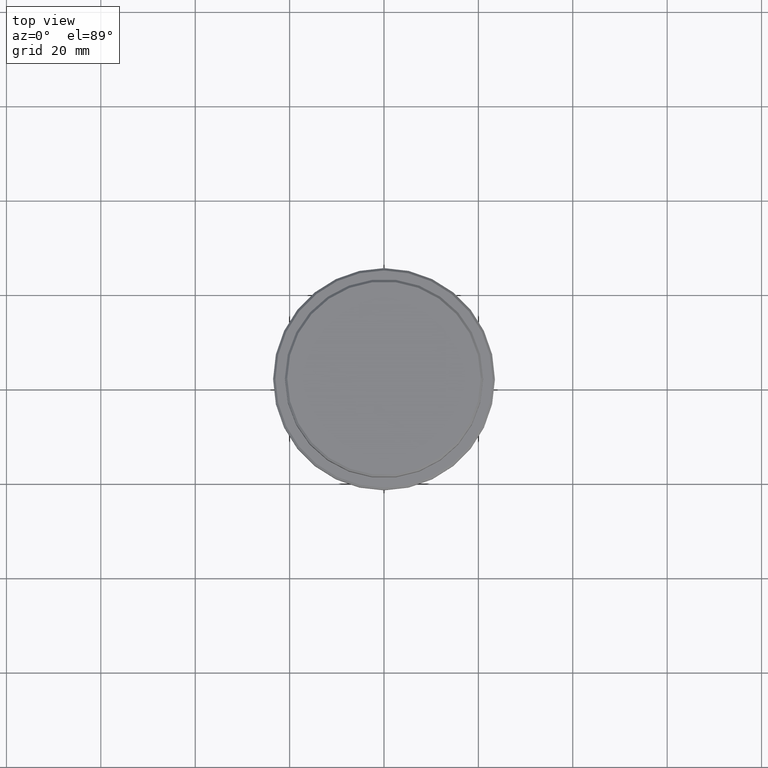
[diagram: clean part render]
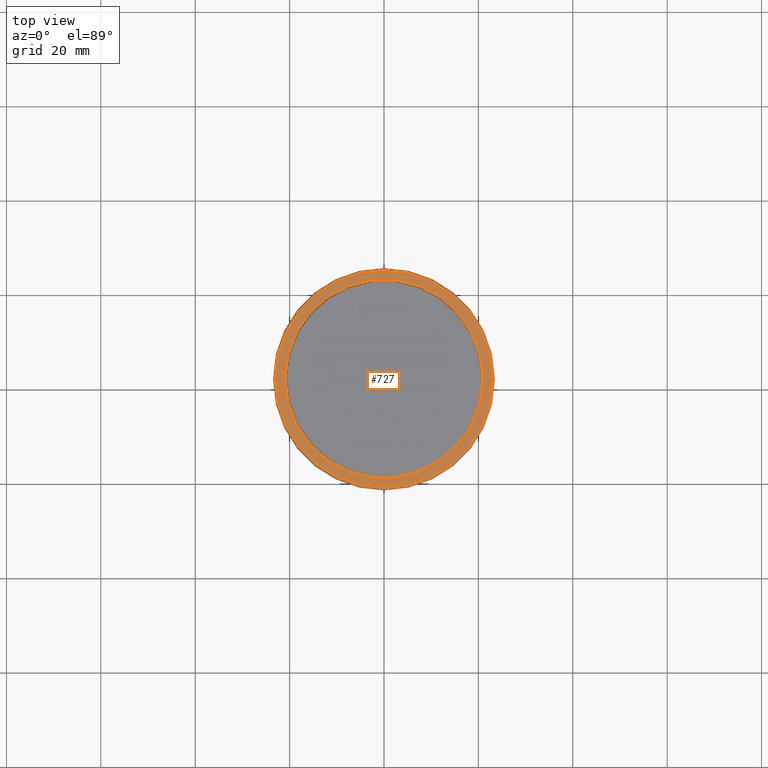
[diagram: same view with one face highlighted and labeled with its STEP entity id]
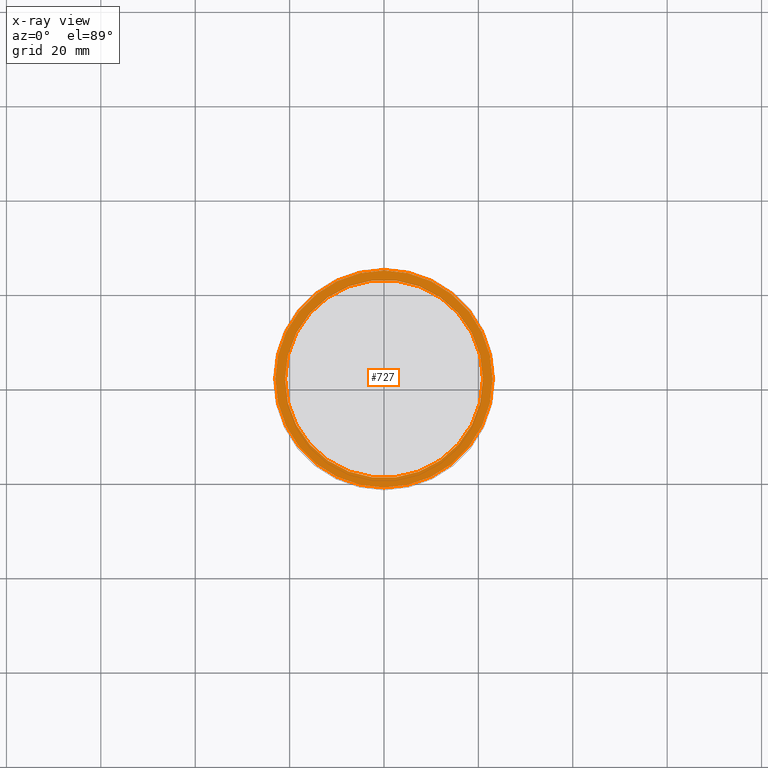
[diagram: x-ray of the same camera — body ghosted, the highlighted face saturated]
A machine part, top view. The second image highlights one B-rep face of the part: STEP entity #727.
The next image is the same camera in x-ray: the body ghosted, the highlighted face saturated — about 0% of this face is hidden behind the body in this view.
In plain terms, the highlighted planar face has unit normal (0, -0, 1).
Its self-contained STEP definition (entity closure, byte-faithful):
#46 = DIRECTION ( 'NONE',  ( 1.000000000000000000, 0.000000000000000000, 0.000000000000000000 ) ) ;
#61 = CARTESIAN_POINT ( 'NONE',  ( 20.99999999999999289, 0.000000000000000000, -9.000000000000000000 ) ) ;
#76 = DIRECTION ( 'NONE',  ( 0.000000000000000000, 0.000000000000000000, -1.000000000000000000 ) ) ;
#146 = EDGE_CURVE ( 'NONE', #779, #722, #1276, .T. ) ;
#148 = CARTESIAN_POINT ( 'NONE',  ( -23.00000000000001066, 0.000000000000000000, -9.000000000000000000 ) ) ;
#205 = AXIS2_PLACEMENT_3D ( 'NONE', #1254, #502, #294 ) ;
#227 = DIRECTION ( 'NONE',  ( 1.000000000000000000, 0.000000000000000000, 0.000000000000000000 ) ) ;
#294 = DIRECTION ( 'NONE',  ( 1.000000000000000000, 0.000000000000000000, 0.000000000000000000 ) ) ;
#312 = AXIS2_PLACEMENT_3D ( 'NONE', #825, #1121, #1256 ) ;
#320 = CARTESIAN_POINT ( 'NONE',  ( 23.00000000000001066, 2.847303808017596928E-15, -9.000000000000000000 ) ) ;
#398 = FACE_OUTER_BOUND ( 'NONE', #645, .T. ) ;
#471 = EDGE_CURVE ( 'NONE', #722, #779, #1278, .T. ) ;
#502 = DIRECTION ( 'NONE',  ( 0.000000000000000000, 0.000000000000000000, -1.000000000000000000 ) ) ;
#533 = AXIS2_PLACEMENT_3D ( 'NONE', #1125, #688, #46 ) ;
#535 = AXIS2_PLACEMENT_3D ( 'NONE', #649, #76, #540 ) ;
#540 = DIRECTION ( 'NONE',  ( 1.000000000000000000, 0.000000000000000000, 0.000000000000000000 ) ) ;
#633 = EDGE_CURVE ( 'NONE', #1237, #878, #713, .T. ) ;
#640 = ORIENTED_EDGE ( 'NONE', *, *, #1253, .T. ) ;
#645 = EDGE_LOOP ( 'NONE', ( #1414, #640 ) ) ;
#649 = CARTESIAN_POINT ( 'NONE',  ( 0.000000000000000000, 0.000000000000000000, -9.000000000000000000 ) ) ;
#688 = DIRECTION ( 'NONE',  ( -0.000000000000000000, -0.000000000000000000, 1.000000000000000000 ) ) ;
#713 = CIRCLE ( 'NONE', #910, 23.00000000000001066 ) ;
#722 = VERTEX_POINT ( 'NONE', #1133 ) ;
#727 = ADVANCED_FACE ( 'NONE', ( #398, #832 ), #931, .T. ) ;
#778 = CARTESIAN_POINT ( 'NONE',  ( 0.000000000000000000, 0.000000000000000000, -9.000000000000000000 ) ) ;
#779 = VERTEX_POINT ( 'NONE', #61 ) ;
#792 = ORIENTED_EDGE ( 'NONE', *, *, #146, .T. ) ;
#825 = CARTESIAN_POINT ( 'NONE',  ( 0.000000000000000000, 20.49999999999999645, -9.000000000000000000 ) ) ;
#832 = FACE_BOUND ( 'NONE', #903, .T. ) ;
#878 = VERTEX_POINT ( 'NONE', #320 ) ;
#903 = EDGE_LOOP ( 'NONE', ( #792, #1346 ) ) ;
#910 = AXIS2_PLACEMENT_3D ( 'NONE', #778, #1308, #227 ) ;
#931 = PLANE ( 'NONE',  #312 ) ;
#1030 = CIRCLE ( 'NONE', #533, 23.00000000000001066 ) ;
#1121 = DIRECTION ( 'NONE',  ( 0.000000000000000000, -0.000000000000000000, 1.000000000000000000 ) ) ;
#1125 = CARTESIAN_POINT ( 'NONE',  ( 0.000000000000000000, 0.000000000000000000, -9.000000000000000000 ) ) ;
#1133 = CARTESIAN_POINT ( 'NONE',  ( -20.99999999999999289, 2.571758278209440872E-15, -9.000000000000000000 ) ) ;
#1237 = VERTEX_POINT ( 'NONE', #148 ) ;
#1253 = EDGE_CURVE ( 'NONE', #878, #1237, #1030, .T. ) ;
#1254 = CARTESIAN_POINT ( 'NONE',  ( 0.000000000000000000, 0.000000000000000000, -9.000000000000000000 ) ) ;
#1256 = DIRECTION ( 'NONE',  ( 1.000000000000000000, 0.000000000000000000, 0.000000000000000000 ) ) ;
#1276 = CIRCLE ( 'NONE', #205, 20.99999999999999289 ) ;
#1278 = CIRCLE ( 'NONE', #535, 20.99999999999999289 ) ;
#1308 = DIRECTION ( 'NONE',  ( -0.000000000000000000, -0.000000000000000000, 1.000000000000000000 ) ) ;
#1346 = ORIENTED_EDGE ( 'NONE', *, *, #471, .T. ) ;
#1414 = ORIENTED_EDGE ( 'NONE', *, *, #633, .T. ) ;